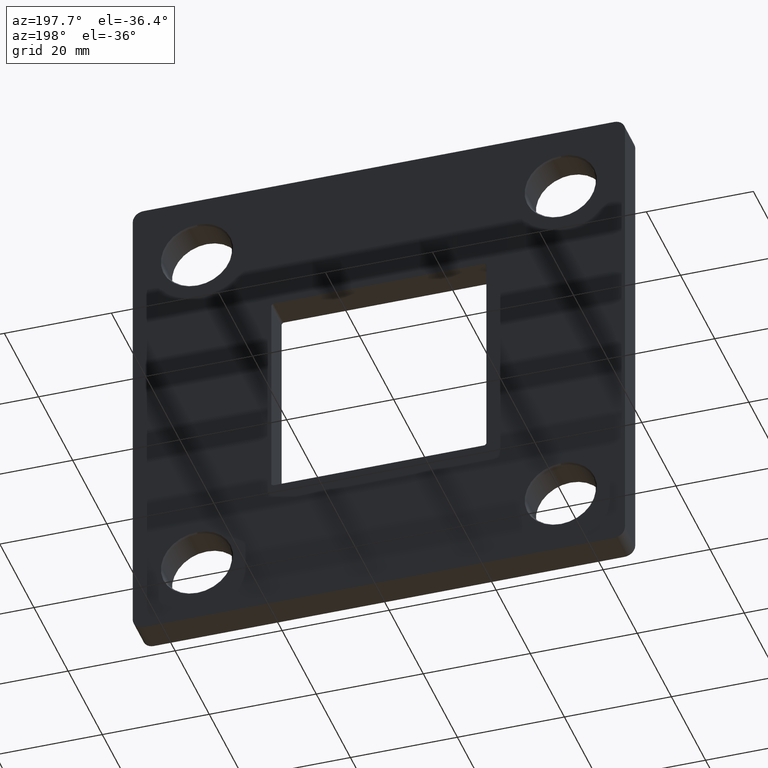
[diagram: clean part render]
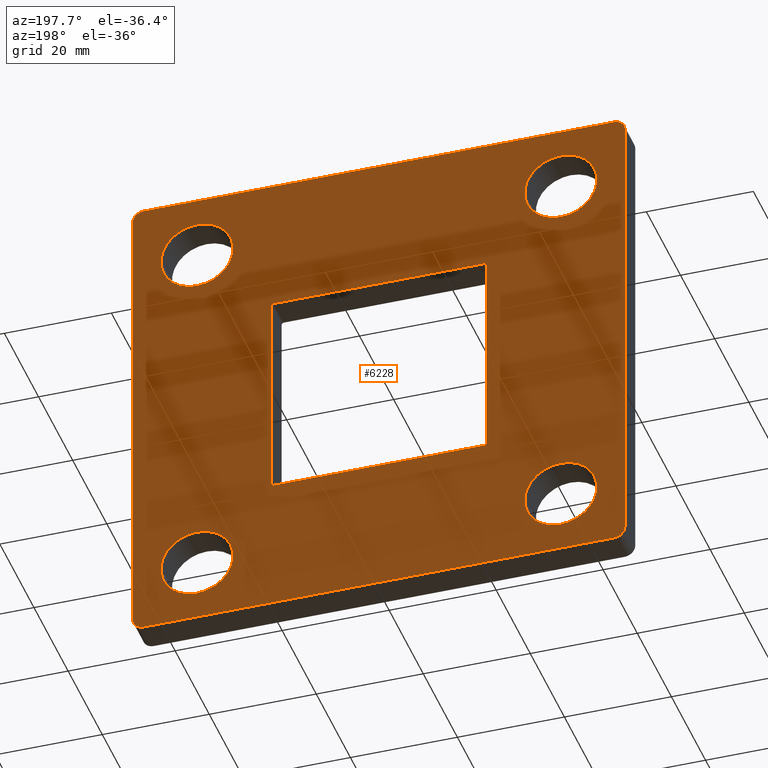
[diagram: same view with one face highlighted and labeled with its STEP entity id]
A machine part, auxiliary view. The second image highlights one B-rep face of the part: STEP entity #6228.
In plain terms, the highlighted planar face has unit normal (0, 1, 0).
Its self-contained STEP definition (entity closure, byte-faithful):
#27 = DIRECTION ( 'NONE',  ( 0.000000000000000000, 0.000000000000000000, 1.000000000000000000 ) ) ;
#189 = CARTESIAN_POINT ( 'NONE',  ( 34.00000000000000000, 6.000000000000000000, -34.00000000000000000 ) ) ;
#253 = LINE ( 'NONE', #8619, #4500 ) ;
#357 = CARTESIAN_POINT ( 'NONE',  ( -44.00000000000001421, 6.000000000000000000, -46.00000000000000000 ) ) ;
#491 = CARTESIAN_POINT ( 'NONE',  ( -46.00000000000001421, 6.000000000000000000, -44.00000000000000000 ) ) ;
#510 = AXIS2_PLACEMENT_3D ( 'NONE', #189, #2507, #27 ) ;
#854 = ORIENTED_EDGE ( 'NONE', *, *, #14054, .T. ) ;
#919 = EDGE_CURVE ( 'NONE', #2660, #12166, #7442, .T. ) ;
#925 = EDGE_LOOP ( 'NONE', ( #3714, #8545 ) ) ;
#982 = CARTESIAN_POINT ( 'NONE',  ( 20.10000000000000142, 6.000000000000000000, -19.59999999999999787 ) ) ;
#1032 = CIRCLE ( 'NONE', #3533, 2.000000000000001776 ) ;
#1079 = CARTESIAN_POINT ( 'NONE',  ( 43.99999999999998579, 6.000000000000000000, -46.00000000000000711 ) ) ;
#1092 = AXIS2_PLACEMENT_3D ( 'NONE', #9107, #6549, #2785 ) ;
#1171 = DIRECTION ( 'NONE',  ( 0.000000000000000000, 0.000000000000000000, 1.000000000000000000 ) ) ;
#1240 = AXIS2_PLACEMENT_3D ( 'NONE', #3775, #2524, #13463 ) ;
#1320 = CARTESIAN_POINT ( 'NONE',  ( -34.00000000000000000, 6.000000000000000000, -34.00000000000000000 ) ) ;
#1449 = CARTESIAN_POINT ( 'NONE',  ( 46.00000000000000000, 6.000000000000000000, 43.99999999999999289 ) ) ;
#1451 = VECTOR ( 'NONE', #9462, 1000.000000000000000 ) ;
#1646 = DIRECTION ( 'NONE',  ( -0.000000000000000000, -1.000000000000000000, -0.000000000000000000 ) ) ;
#2012 = EDGE_CURVE ( 'NONE', #13457, #6695, #2801, .T. ) ;
#2018 = CARTESIAN_POINT ( 'NONE',  ( -20.10000000000000142, 6.000000000000000000, 20.10000000000000142 ) ) ;
#2039 = EDGE_CURVE ( 'NONE', #7940, #7153, #11444, .T. ) ;
#2047 = VERTEX_POINT ( 'NONE', #6958 ) ;
#2072 = EDGE_CURVE ( 'NONE', #11783, #2047, #9140, .T. ) ;
#2077 = CARTESIAN_POINT ( 'NONE',  ( -34.00000000000000000, 6.000000000000000000, -27.25000000000001066 ) ) ;
#2166 = ORIENTED_EDGE ( 'NONE', *, *, #13532, .T. ) ;
#2174 = CIRCLE ( 'NONE', #12433, 0.5000000000000004441 ) ;
#2185 = DIRECTION ( 'NONE',  ( -0.000000000000000000, -1.000000000000000000, -0.000000000000000000 ) ) ;
#2246 = EDGE_LOOP ( 'NONE', ( #15313, #13245 ) ) ;
#2267 = DIRECTION ( 'NONE',  ( 0.000000000000000000, 0.000000000000000000, 1.000000000000000000 ) ) ;
#2417 = ORIENTED_EDGE ( 'NONE', *, *, #8523, .T. ) ;
#2432 = ORIENTED_EDGE ( 'NONE', *, *, #2039, .T. ) ;
#2507 = DIRECTION ( 'NONE',  ( -0.000000000000000000, -1.000000000000000000, -0.000000000000000000 ) ) ;
#2510 = LINE ( 'NONE', #12983, #8097 ) ;
#2514 = CARTESIAN_POINT ( 'NONE',  ( 34.00000000000000000, 6.000000000000000000, -40.74999999999999289 ) ) ;
#2524 = DIRECTION ( 'NONE',  ( -0.000000000000000000, -1.000000000000000000, -0.000000000000000000 ) ) ;
#2598 = VERTEX_POINT ( 'NONE', #2514 ) ;
#2600 = CIRCLE ( 'NONE', #14600, 6.749999999999992006 ) ;
#2660 = VERTEX_POINT ( 'NONE', #357 ) ;
#2688 = ORIENTED_EDGE ( 'NONE', *, *, #12939, .T. ) ;
#2785 = DIRECTION ( 'NONE',  ( 0.000000000000000000, 0.000000000000000000, 1.000000000000000000 ) ) ;
#2788 = CARTESIAN_POINT ( 'NONE',  ( -44.00000000000000000, 6.000000000000000000, 45.99999999999999289 ) ) ;
#2801 = LINE ( 'NONE', #2018, #1451 ) ;
#2916 = FACE_BOUND ( 'NONE', #2246, .T. ) ;
#2975 = CIRCLE ( 'NONE', #13428, 6.749999999999992006 ) ;
#2980 = DIRECTION ( 'NONE',  ( 0.000000000000000000, 0.000000000000000000, 1.000000000000000000 ) ) ;
#3253 = CARTESIAN_POINT ( 'NONE',  ( -34.00000000000000000, 6.000000000000000000, 40.74999999999999289 ) ) ;
#3394 = ORIENTED_EDGE ( 'NONE', *, *, #919, .T. ) ;
#3494 = VERTEX_POINT ( 'NONE', #7361 ) ;
#3497 = EDGE_CURVE ( 'NONE', #2598, #12567, #2975, .T. ) ;
#3512 = LINE ( 'NONE', #6616, #7936 ) ;
#3533 = AXIS2_PLACEMENT_3D ( 'NONE', #13961, #6637, #2980 ) ;
#3540 = CARTESIAN_POINT ( 'NONE',  ( -34.00000000000000000, 6.000000000000000000, 27.25000000000001066 ) ) ;
#3668 = DIRECTION ( 'NONE',  ( 0.000000000000000000, -0.000000000000000000, 1.000000000000000000 ) ) ;
#3675 = EDGE_LOOP ( 'NONE', ( #11388, #13164 ) ) ;
#3714 = ORIENTED_EDGE ( 'NONE', *, *, #10688, .T. ) ;
#3734 = VERTEX_POINT ( 'NONE', #6613 ) ;
#3775 = CARTESIAN_POINT ( 'NONE',  ( -34.00000000000000000, 6.000000000000000000, 34.00000000000000000 ) ) ;
#3921 = VECTOR ( 'NONE', #14478, 1000.000000000000000 ) ;
#4246 = CIRCLE ( 'NONE', #11967, 0.5000000000000004441 ) ;
#4500 = VECTOR ( 'NONE', #14712, 1000.000000000000000 ) ;
#4542 = DIRECTION ( 'NONE',  ( -0.000000000000000000, -1.000000000000000000, -0.000000000000000000 ) ) ;
#4585 = DIRECTION ( 'NONE',  ( 0.000000000000000000, 0.000000000000000000, 1.000000000000000000 ) ) ;
#4678 = CIRCLE ( 'NONE', #11770, 2.000000000000001776 ) ;
#4695 = CARTESIAN_POINT ( 'NONE',  ( -19.59999999999999787, 6.000000000000000000, 19.59999999999999787 ) ) ;
#4775 = DIRECTION ( 'NONE',  ( 0.000000000000000000, 1.000000000000000000, 0.000000000000000000 ) ) ;
#4800 = VERTEX_POINT ( 'NONE', #2077 ) ;
#4808 = EDGE_CURVE ( 'NONE', #14348, #6695, #2174, .T. ) ;
#5055 = PLANE ( 'NONE',  #10490 ) ;
#5118 = CIRCLE ( 'NONE', #7935, 0.5000000000000004441 ) ;
#5348 = VERTEX_POINT ( 'NONE', #5801 ) ;
#5467 = VERTEX_POINT ( 'NONE', #2788 ) ;
#5543 = DIRECTION ( 'NONE',  ( 0.000000000000000000, 0.000000000000000000, -1.000000000000000000 ) ) ;
#5587 = ORIENTED_EDGE ( 'NONE', *, *, #12202, .F. ) ;
#5633 = LINE ( 'NONE', #12440, #12525 ) ;
#5689 = VECTOR ( 'NONE', #14288, 1000.000000000000000 ) ;
#5748 = DIRECTION ( 'NONE',  ( 0.000000000000000000, 0.000000000000000000, 1.000000000000000000 ) ) ;
#5784 = DIRECTION ( 'NONE',  ( 0.000000000000000000, 0.000000000000000000, 1.000000000000000000 ) ) ;
#5794 = FACE_OUTER_BOUND ( 'NONE', #13017, .T. ) ;
#5801 = CARTESIAN_POINT ( 'NONE',  ( 19.59999999999999787, 6.000000000000000000, 20.10000000000000142 ) ) ;
#5981 = VERTEX_POINT ( 'NONE', #1079 ) ;
#5986 = CARTESIAN_POINT ( 'NONE',  ( 45.99999999999998579, 6.000000000000000000, -44.00000000000000711 ) ) ;
#5988 = ORIENTED_EDGE ( 'NONE', *, *, #9755, .T. ) ;
#6125 = DIRECTION ( 'NONE',  ( -0.000000000000000000, -1.000000000000000000, -0.000000000000000000 ) ) ;
#6128 = VERTEX_POINT ( 'NONE', #8711 ) ;
#6159 = FACE_BOUND ( 'NONE', #925, .T. ) ;
#6228 = ADVANCED_FACE ( 'NONE', ( #13454, #2916, #10200, #6159, #12308, #5794 ), #5055, .T. ) ;
#6422 = DIRECTION ( 'NONE',  ( 0.000000000000000000, 0.000000000000000000, 1.000000000000000000 ) ) ;
#6476 = ORIENTED_EDGE ( 'NONE', *, *, #12114, .T. ) ;
#6549 = DIRECTION ( 'NONE',  ( 0.000000000000000000, 1.000000000000000000, 0.000000000000000000 ) ) ;
#6613 = CARTESIAN_POINT ( 'NONE',  ( 19.59999999999999787, 6.000000000000000000, -20.10000000000000142 ) ) ;
#6616 = CARTESIAN_POINT ( 'NONE',  ( 20.10000000000000142, 6.000000000000000000, 20.10000000000000142 ) ) ;
#6637 = DIRECTION ( 'NONE',  ( 0.000000000000000000, 1.000000000000000000, 0.000000000000000000 ) ) ;
#6652 = EDGE_CURVE ( 'NONE', #10680, #5467, #15356, .T. ) ;
#6687 = EDGE_CURVE ( 'NONE', #12567, #2598, #9218, .T. ) ;
#6695 = VERTEX_POINT ( 'NONE', #7519 ) ;
#6849 = CARTESIAN_POINT ( 'NONE',  ( -20.10000000000000142, 6.000000000000000000, 20.10000000000000142 ) ) ;
#6907 = CIRCLE ( 'NONE', #1240, 6.749999999999992006 ) ;
#6933 = CARTESIAN_POINT ( 'NONE',  ( -19.59999999999999787, 6.000000000000000000, 20.10000000000000142 ) ) ;
#6935 = CARTESIAN_POINT ( 'NONE',  ( -20.10000000000000142, 6.000000000000000000, -19.59999999999999787 ) ) ;
#6958 = CARTESIAN_POINT ( 'NONE',  ( 34.00000000000000000, 6.000000000000000000, 40.74999999999999289 ) ) ;
#7009 = CARTESIAN_POINT ( 'NONE',  ( 45.99999999999998579, 6.000000000000000000, -46.00000000000000711 ) ) ;
#7153 = VERTEX_POINT ( 'NONE', #5986 ) ;
#7340 = EDGE_LOOP ( 'NONE', ( #2417, #10253 ) ) ;
#7361 = CARTESIAN_POINT ( 'NONE',  ( 20.10000000000000142, 6.000000000000000000, 19.59999999999999787 ) ) ;
#7442 = CIRCLE ( 'NONE', #1092, 2.000000000000001776 ) ;
#7519 = CARTESIAN_POINT ( 'NONE',  ( -20.10000000000000142, 6.000000000000000000, 19.59999999999999787 ) ) ;
#7603 = AXIS2_PLACEMENT_3D ( 'NONE', #8449, #6125, #2267 ) ;
#7870 = AXIS2_PLACEMENT_3D ( 'NONE', #9624, #4542, #4585 ) ;
#7935 = AXIS2_PLACEMENT_3D ( 'NONE', #15448, #2185, #5748 ) ;
#7936 = VECTOR ( 'NONE', #5543, 1000.000000000000000 ) ;
#7940 = VERTEX_POINT ( 'NONE', #1449 ) ;
#8085 = DIRECTION ( 'NONE',  ( 1.000000000000000000, 0.000000000000000000, 0.000000000000000000 ) ) ;
#8097 = VECTOR ( 'NONE', #13137, 1000.000000000000000 ) ;
#8147 = DIRECTION ( 'NONE',  ( 0.000000000000000000, 0.000000000000000000, 1.000000000000000000 ) ) ;
#8320 = DIRECTION ( 'NONE',  ( 0.000000000000000000, 0.000000000000000000, 1.000000000000000000 ) ) ;
#8426 = DIRECTION ( 'NONE',  ( 0.000000000000000000, 0.000000000000000000, 1.000000000000000000 ) ) ;
#8440 = CARTESIAN_POINT ( 'NONE',  ( 43.99999999999998579, 6.000000000000000000, -44.00000000000000711 ) ) ;
#8449 = CARTESIAN_POINT ( 'NONE',  ( 34.00000000000000000, 6.000000000000000000, 34.00000000000000000 ) ) ;
#8523 = EDGE_CURVE ( 'NONE', #15591, #14432, #6907, .T. ) ;
#8545 = ORIENTED_EDGE ( 'NONE', *, *, #13719, .T. ) ;
#8619 = CARTESIAN_POINT ( 'NONE',  ( -20.10000000000000142, 6.000000000000000000, -20.10000000000000142 ) ) ;
#8690 = DIRECTION ( 'NONE',  ( 1.000000000000000000, 0.000000000000000000, 0.000000000000000000 ) ) ;
#8711 = CARTESIAN_POINT ( 'NONE',  ( -34.00000000000000000, 6.000000000000000000, -40.74999999999999289 ) ) ;
#9054 = CARTESIAN_POINT ( 'NONE',  ( 34.00000000000000000, 6.000000000000000000, 27.25000000000001066 ) ) ;
#9107 = CARTESIAN_POINT ( 'NONE',  ( -44.00000000000001421, 6.000000000000000000, -44.00000000000000000 ) ) ;
#9140 = CIRCLE ( 'NONE', #7603, 6.749999999999992006 ) ;
#9218 = CIRCLE ( 'NONE', #510, 6.749999999999992006 ) ;
#9462 = DIRECTION ( 'NONE',  ( -0.000000000000000000, -0.000000000000000000, 1.000000000000000000 ) ) ;
#9463 = ORIENTED_EDGE ( 'NONE', *, *, #12319, .T. ) ;
#9504 = DIRECTION ( 'NONE',  ( 0.000000000000000000, 1.000000000000000000, 0.000000000000000000 ) ) ;
#9549 = ORIENTED_EDGE ( 'NONE', *, *, #12727, .F. ) ;
#9580 = CIRCLE ( 'NONE', #7870, 0.5000000000000004441 ) ;
#9624 = CARTESIAN_POINT ( 'NONE',  ( -19.59999999999999787, 6.000000000000000000, -19.59999999999999787 ) ) ;
#9660 = DIRECTION ( 'NONE',  ( 0.000000000000000000, 0.000000000000000000, 1.000000000000000000 ) ) ;
#9755 = EDGE_CURVE ( 'NONE', #3494, #5348, #5118, .T. ) ;
#9763 = DIRECTION ( 'NONE',  ( -0.000000000000000000, -1.000000000000000000, -0.000000000000000000 ) ) ;
#9921 = DIRECTION ( 'NONE',  ( -0.000000000000000000, -1.000000000000000000, -0.000000000000000000 ) ) ;
#9924 = ORIENTED_EDGE ( 'NONE', *, *, #11928, .F. ) ;
#10036 = LINE ( 'NONE', #13206, #3921 ) ;
#10055 = VECTOR ( 'NONE', #8085, 1000.000000000000000 ) ;
#10125 = EDGE_CURVE ( 'NONE', #14432, #15591, #12025, .T. ) ;
#10200 = FACE_BOUND ( 'NONE', #3675, .T. ) ;
#10253 = ORIENTED_EDGE ( 'NONE', *, *, #10125, .T. ) ;
#10487 = EDGE_LOOP ( 'NONE', ( #9549, #5988, #5587, #14819, #15911, #11364, #9924, #854 ) ) ;
#10490 = AXIS2_PLACEMENT_3D ( 'NONE', #14802, #14701, #3668 ) ;
#10680 = VERTEX_POINT ( 'NONE', #13488 ) ;
#10688 = EDGE_CURVE ( 'NONE', #4800, #6128, #12009, .T. ) ;
#10863 = EDGE_CURVE ( 'NONE', #2047, #11783, #2600, .T. ) ;
#10993 = CARTESIAN_POINT ( 'NONE',  ( -34.00000000000000000, 6.000000000000000000, -34.00000000000000000 ) ) ;
#11011 = ORIENTED_EDGE ( 'NONE', *, *, #12307, .T. ) ;
#11021 = AXIS2_PLACEMENT_3D ( 'NONE', #1320, #13594, #6422 ) ;
#11160 = CARTESIAN_POINT ( 'NONE',  ( 34.00000000000000000, 6.000000000000000000, -34.00000000000000000 ) ) ;
#11364 = ORIENTED_EDGE ( 'NONE', *, *, #14883, .T. ) ;
#11388 = ORIENTED_EDGE ( 'NONE', *, *, #6687, .T. ) ;
#11444 = LINE ( 'NONE', #7009, #5689 ) ;
#11557 = CIRCLE ( 'NONE', #14307, 6.749999999999992006 ) ;
#11581 = DIRECTION ( 'NONE',  ( -0.000000000000000000, -1.000000000000000000, -0.000000000000000000 ) ) ;
#11770 = AXIS2_PLACEMENT_3D ( 'NONE', #8440, #9504, #9660 ) ;
#11783 = VERTEX_POINT ( 'NONE', #9054 ) ;
#11795 = CARTESIAN_POINT ( 'NONE',  ( -34.00000000000000000, 6.000000000000000000, 34.00000000000000000 ) ) ;
#11895 = DIRECTION ( 'NONE',  ( -0.000000000000000000, -1.000000000000000000, -0.000000000000000000 ) ) ;
#11928 = EDGE_CURVE ( 'NONE', #3734, #14073, #253, .T. ) ;
#11967 = AXIS2_PLACEMENT_3D ( 'NONE', #14693, #9921, #13512 ) ;
#12009 = CIRCLE ( 'NONE', #11021, 6.749999999999992006 ) ;
#12025 = CIRCLE ( 'NONE', #13568, 6.749999999999992006 ) ;
#12114 = EDGE_CURVE ( 'NONE', #14294, #7940, #1032, .T. ) ;
#12166 = VERTEX_POINT ( 'NONE', #491 ) ;
#12202 = EDGE_CURVE ( 'NONE', #14348, #5348, #12564, .T. ) ;
#12307 = EDGE_CURVE ( 'NONE', #12166, #10680, #10036, .T. ) ;
#12308 = FACE_BOUND ( 'NONE', #7340, .T. ) ;
#12319 = EDGE_CURVE ( 'NONE', #7153, #5981, #4678, .T. ) ;
#12433 = AXIS2_PLACEMENT_3D ( 'NONE', #4695, #11895, #5784 ) ;
#12440 = CARTESIAN_POINT ( 'NONE',  ( -46.00000000000000000, 6.000000000000000000, 45.99999999999999289 ) ) ;
#12525 = VECTOR ( 'NONE', #8690, 1000.000000000000000 ) ;
#12564 = LINE ( 'NONE', #6849, #10055 ) ;
#12567 = VERTEX_POINT ( 'NONE', #13674 ) ;
#12645 = DIRECTION ( 'NONE',  ( 0.000000000000000000, 0.000000000000000000, 1.000000000000000000 ) ) ;
#12727 = EDGE_CURVE ( 'NONE', #3494, #15513, #3512, .T. ) ;
#12939 = EDGE_CURVE ( 'NONE', #5467, #14294, #5633, .T. ) ;
#12983 = CARTESIAN_POINT ( 'NONE',  ( -46.00000000000001421, 6.000000000000000000, -46.00000000000000000 ) ) ;
#13017 = EDGE_LOOP ( 'NONE', ( #2432, #9463, #2166, #3394, #11011, #14541, #2688, #6476 ) ) ;
#13137 = DIRECTION ( 'NONE',  ( -1.000000000000000000, -0.000000000000000000, 7.542275982507857147E-17 ) ) ;
#13164 = ORIENTED_EDGE ( 'NONE', *, *, #3497, .T. ) ;
#13206 = CARTESIAN_POINT ( 'NONE',  ( -46.00000000000001421, 6.000000000000000000, -46.00000000000000000 ) ) ;
#13245 = ORIENTED_EDGE ( 'NONE', *, *, #2072, .T. ) ;
#13428 = AXIS2_PLACEMENT_3D ( 'NONE', #11160, #9763, #1171 ) ;
#13454 = FACE_BOUND ( 'NONE', #10487, .T. ) ;
#13457 = VERTEX_POINT ( 'NONE', #6935 ) ;
#13463 = DIRECTION ( 'NONE',  ( 0.000000000000000000, 0.000000000000000000, 1.000000000000000000 ) ) ;
#13488 = CARTESIAN_POINT ( 'NONE',  ( -46.00000000000000000, 6.000000000000000000, 44.00000000000000000 ) ) ;
#13512 = DIRECTION ( 'NONE',  ( 0.000000000000000000, 0.000000000000000000, 1.000000000000000000 ) ) ;
#13532 = EDGE_CURVE ( 'NONE', #5981, #2660, #2510, .T. ) ;
#13568 = AXIS2_PLACEMENT_3D ( 'NONE', #11795, #11581, #8147 ) ;
#13594 = DIRECTION ( 'NONE',  ( -0.000000000000000000, -1.000000000000000000, -0.000000000000000000 ) ) ;
#13621 = CARTESIAN_POINT ( 'NONE',  ( -19.59999999999999787, 6.000000000000000000, -20.10000000000000142 ) ) ;
#13674 = CARTESIAN_POINT ( 'NONE',  ( 34.00000000000000000, 6.000000000000000000, -27.25000000000001066 ) ) ;
#13719 = EDGE_CURVE ( 'NONE', #6128, #4800, #11557, .T. ) ;
#13961 = CARTESIAN_POINT ( 'NONE',  ( 44.00000000000000000, 6.000000000000000000, 43.99999999999999289 ) ) ;
#14054 = EDGE_CURVE ( 'NONE', #3734, #15513, #4246, .T. ) ;
#14073 = VERTEX_POINT ( 'NONE', #13621 ) ;
#14288 = DIRECTION ( 'NONE',  ( -1.508455196501571429E-16, -0.000000000000000000, -1.000000000000000000 ) ) ;
#14294 = VERTEX_POINT ( 'NONE', #15396 ) ;
#14307 = AXIS2_PLACEMENT_3D ( 'NONE', #10993, #15659, #8320 ) ;
#14348 = VERTEX_POINT ( 'NONE', #6933 ) ;
#14432 = VERTEX_POINT ( 'NONE', #3540 ) ;
#14478 = DIRECTION ( 'NONE',  ( 1.508455196501571429E-16, 0.000000000000000000, 1.000000000000000000 ) ) ;
#14541 = ORIENTED_EDGE ( 'NONE', *, *, #6652, .T. ) ;
#14600 = AXIS2_PLACEMENT_3D ( 'NONE', #15045, #1646, #12645 ) ;
#14693 = CARTESIAN_POINT ( 'NONE',  ( 19.59999999999999787, 6.000000000000000000, -19.59999999999999787 ) ) ;
#14701 = DIRECTION ( 'NONE',  ( 0.000000000000000000, 1.000000000000000000, 0.000000000000000000 ) ) ;
#14712 = DIRECTION ( 'NONE',  ( -1.000000000000000000, -0.000000000000000000, -0.000000000000000000 ) ) ;
#14802 = CARTESIAN_POINT ( 'NONE',  ( 0.000000000000000000, 6.000000000000000000, 0.000000000000000000 ) ) ;
#14819 = ORIENTED_EDGE ( 'NONE', *, *, #4808, .T. ) ;
#14883 = EDGE_CURVE ( 'NONE', #13457, #14073, #9580, .T. ) ;
#15045 = CARTESIAN_POINT ( 'NONE',  ( 34.00000000000000000, 6.000000000000000000, 34.00000000000000000 ) ) ;
#15313 = ORIENTED_EDGE ( 'NONE', *, *, #10863, .T. ) ;
#15356 = CIRCLE ( 'NONE', #15421, 2.000000000000001776 ) ;
#15396 = CARTESIAN_POINT ( 'NONE',  ( 44.00000000000000000, 6.000000000000000000, 45.99999999999999289 ) ) ;
#15421 = AXIS2_PLACEMENT_3D ( 'NONE', #15862, #4775, #8426 ) ;
#15448 = CARTESIAN_POINT ( 'NONE',  ( 19.59999999999999787, 6.000000000000000000, 19.59999999999999787 ) ) ;
#15513 = VERTEX_POINT ( 'NONE', #982 ) ;
#15591 = VERTEX_POINT ( 'NONE', #3253 ) ;
#15659 = DIRECTION ( 'NONE',  ( -0.000000000000000000, -1.000000000000000000, -0.000000000000000000 ) ) ;
#15862 = CARTESIAN_POINT ( 'NONE',  ( -44.00000000000000000, 6.000000000000000000, 43.99999999999999289 ) ) ;
#15911 = ORIENTED_EDGE ( 'NONE', *, *, #2012, .F. ) ;